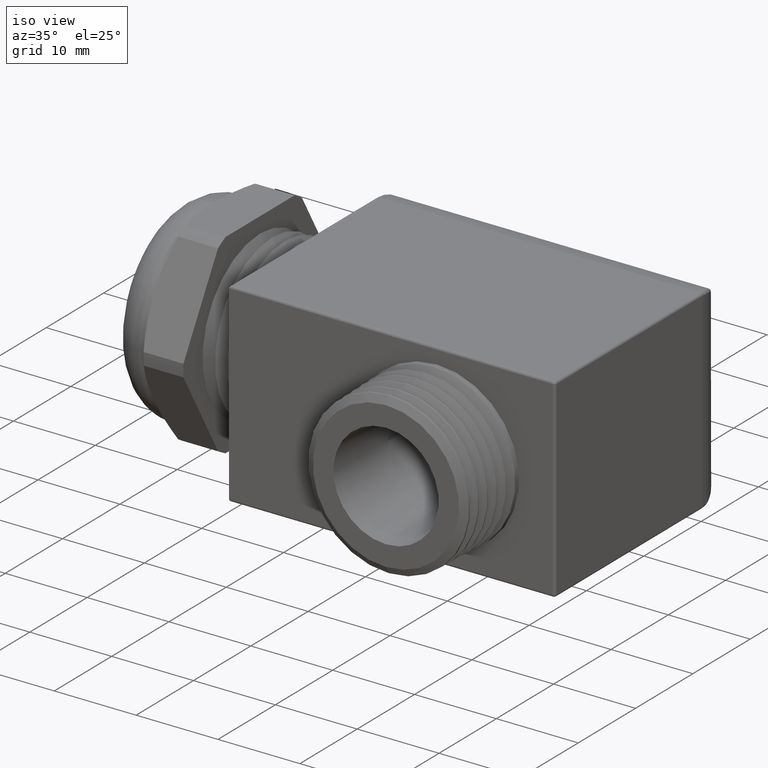
[diagram: clean part render]
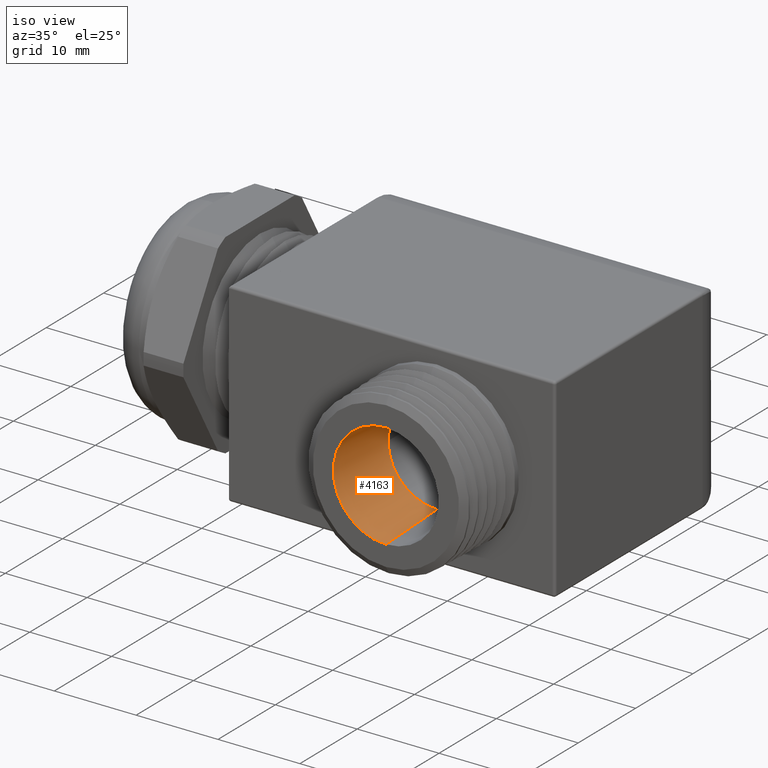
[diagram: same view with one face highlighted and labeled with its STEP entity id]
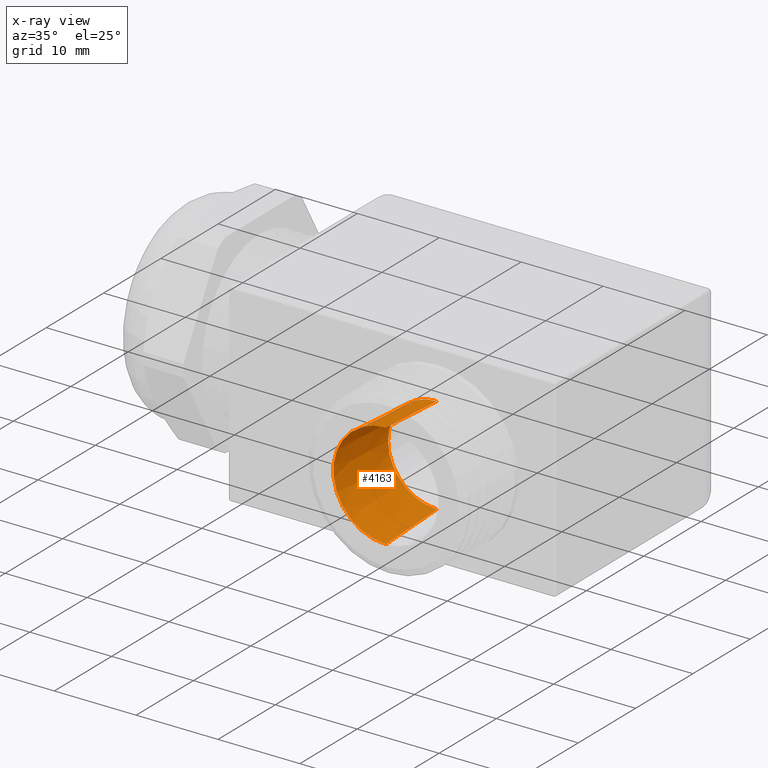
[diagram: x-ray of the same camera — body ghosted, the highlighted face saturated]
A machine part, iso view. The second image highlights one B-rep face of the part: STEP entity #4163.
The next image is the same camera in x-ray: the body ghosted, the highlighted face saturated — about 1% of this face is hidden behind the body in this view.
In plain terms, the highlighted conical surface has half-angle 3 deg.
Its self-contained STEP definition (entity closure, byte-faithful):
#3497 = CARTESIAN_POINT ( 'NONE',  ( 1.000155367231638600, -0.9499999999999999600, -0.2533427227490643300 ) ) ;
#3498 = DIRECTION ( 'NONE',  ( 0.0000000000000000000, 0.0000000000000000000, 1.000000000000000000 ) ) ;
#3499 = DIRECTION ( 'NONE',  ( 0.0000000000000000000, 1.000000000000000000, 0.0000000000000000000 ) ) ;
#3500 = AXIS2_PLACEMENT_3D ( 'NONE', #3505, #3499, #3498 ) ;
#3501 = CIRCLE ( 'NONE', #3500, 0.2533427227490642800 ) ;
#3505 = CARTESIAN_POINT ( 'NONE',  ( 1.000155367231638600, -0.9499999999999999600, -2.785979454945908300E-017 ) ) ;
#3621 = DIRECTION ( 'NONE',  ( 0.0000000000000000000, 0.0000000000000000000, -1.000000000000000000 ) ) ;
#3622 = DIRECTION ( 'NONE',  ( 0.0000000000000000000, -1.000000000000000000, 0.0000000000000000000 ) ) ;
#3623 = CARTESIAN_POINT ( 'NONE',  ( 1.000155367231638600, -0.9499999999999999600, -2.785979454945908300E-017 ) ) ;
#3624 = AXIS2_PLACEMENT_3D ( 'NONE', #3623, #3622, #3621 ) ;
#3626 = CONICAL_SURFACE ( 'NONE', #3624, 0.2533427227490642800, 0.05235987755982959200 ) ;
#3627 = FACE_OUTER_BOUND ( 'NONE', #4164, .T. ) ;
#3735 = CARTESIAN_POINT ( 'NONE',  ( 0.7651553672316385700, -0.6000000000000005300, 2.877919977996281100E-017 ) ) ;
#3867 = DIRECTION ( 'NONE',  ( 0.0000000000000000000, -0.9986295347545738300, -0.05233595624294354300 ) ) ;
#3868 = VECTOR ( 'NONE', #3867, 39.37007874015748100 ) ;
#3869 = CARTESIAN_POINT ( 'NONE',  ( 1.000155367231638600, -0.9499999999999999600, -0.2533427227490643300 ) ) ;
#3909 = LINE ( 'NONE', #3869, #3868 ) ;
#3911 = DIRECTION ( 'NONE',  ( 0.0000000000000000000, 0.0000000000000000000, -1.000000000000000000 ) ) ;
#3912 = DIRECTION ( 'NONE',  ( 0.0000000000000000000, -1.000000000000000000, 0.0000000000000000000 ) ) ;
#3913 = CARTESIAN_POINT ( 'NONE',  ( 1.000155367231638600, -0.6000000000000005300, -2.785979454945908300E-017 ) ) ;
#3914 = AXIS2_PLACEMENT_3D ( 'NONE', #3913, #3912, #3911 ) ;
#3915 = CIRCLE ( 'NONE', #3914, 0.2349999999999999900 ) ;
#3944 = CARTESIAN_POINT ( 'NONE',  ( 1.000155367231638600, -0.6000000000000005300, -0.2350000000000000100 ) ) ;
#4011 = CARTESIAN_POINT ( 'NONE',  ( 1.000155367231638600, -0.9499999999999999600, 0.2533427227490642200 ) ) ;
#4012 = DIRECTION ( 'NONE',  ( 6.409306129323676300E-018, -0.9986295347545738300, 0.05233595624294354300 ) ) ;
#4013 = VECTOR ( 'NONE', #4012, 39.37007874015748100 ) ;
#4014 = CARTESIAN_POINT ( 'NONE',  ( 1.000155367231638600, -0.9499999999999999600, 0.2533427227490642200 ) ) ;
#4015 = LINE ( 'NONE', #4014, #4013 ) ;
#4016 = CARTESIAN_POINT ( 'NONE',  ( 1.000155367231638600, -0.6000000000000005300, 0.2349999999999999600 ) ) ;
#4017 = DIRECTION ( 'NONE',  ( 0.0000000000000000000, 0.0000000000000000000, -1.000000000000000000 ) ) ;
#4018 = DIRECTION ( 'NONE',  ( 0.0000000000000000000, -1.000000000000000000, 0.0000000000000000000 ) ) ;
#4019 = CARTESIAN_POINT ( 'NONE',  ( 1.000155367231638600, -0.6000000000000005300, -2.785979454945908300E-017 ) ) ;
#4020 = AXIS2_PLACEMENT_3D ( 'NONE', #4019, #4018, #4017 ) ;
#4021 = CIRCLE ( 'NONE', #4020, 0.2349999999999999900 ) ;
#4141 = EDGE_CURVE ( 'NONE', #4142, #4334, #3501, .T. ) ;
#4142 = VERTEX_POINT ( 'NONE', #3497 ) ;
#4143 = ORIENTED_EDGE ( 'NONE', *, *, #4275, .F. ) ;
#4163 = ADVANCED_FACE ( 'NONE', ( #3627 ), #3626, .F. ) ;
#4164 = EDGE_LOOP ( 'NONE', ( #4329, #4332, #4335, #4143, #4276 ) ) ;
#4195 = VERTEX_POINT ( 'NONE', #3735 ) ;
#4260 = VERTEX_POINT ( 'NONE', #3944 ) ;
#4273 = EDGE_CURVE ( 'NONE', #4195, #4260, #3915, .T. ) ;
#4275 = EDGE_CURVE ( 'NONE', #4260, #4142, #3909, .T. ) ;
#4276 = ORIENTED_EDGE ( 'NONE', *, *, #4273, .F. ) ;
#4329 = ORIENTED_EDGE ( 'NONE', *, *, #4330, .F. ) ;
#4330 = EDGE_CURVE ( 'NONE', #4331, #4195, #4021, .T. ) ;
#4331 = VERTEX_POINT ( 'NONE', #4016 ) ;
#4332 = ORIENTED_EDGE ( 'NONE', *, *, #4333, .T. ) ;
#4333 = EDGE_CURVE ( 'NONE', #4331, #4334, #4015, .T. ) ;
#4334 = VERTEX_POINT ( 'NONE', #4011 ) ;
#4335 = ORIENTED_EDGE ( 'NONE', *, *, #4141, .F. ) ;